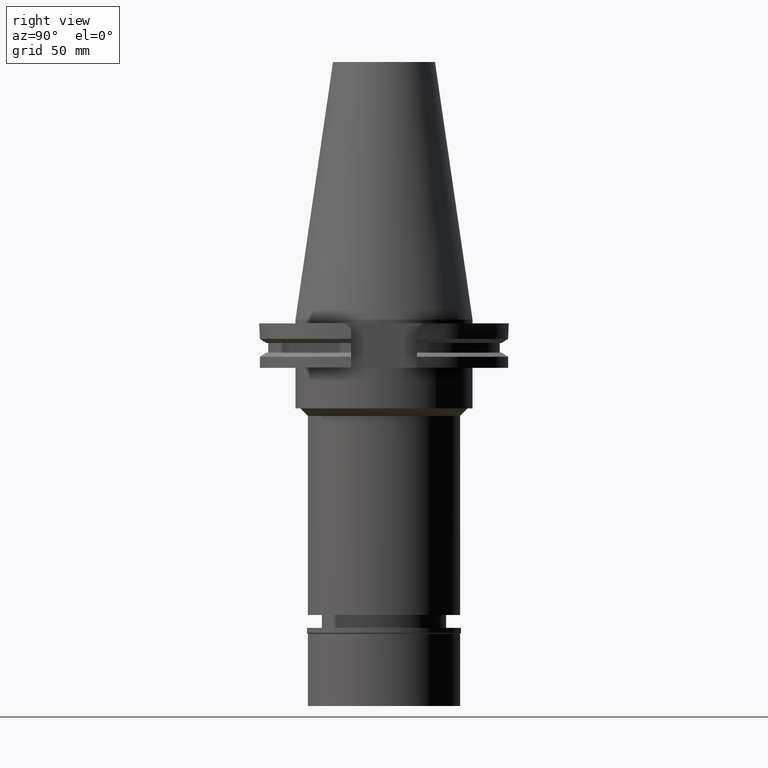
[diagram: clean part render]
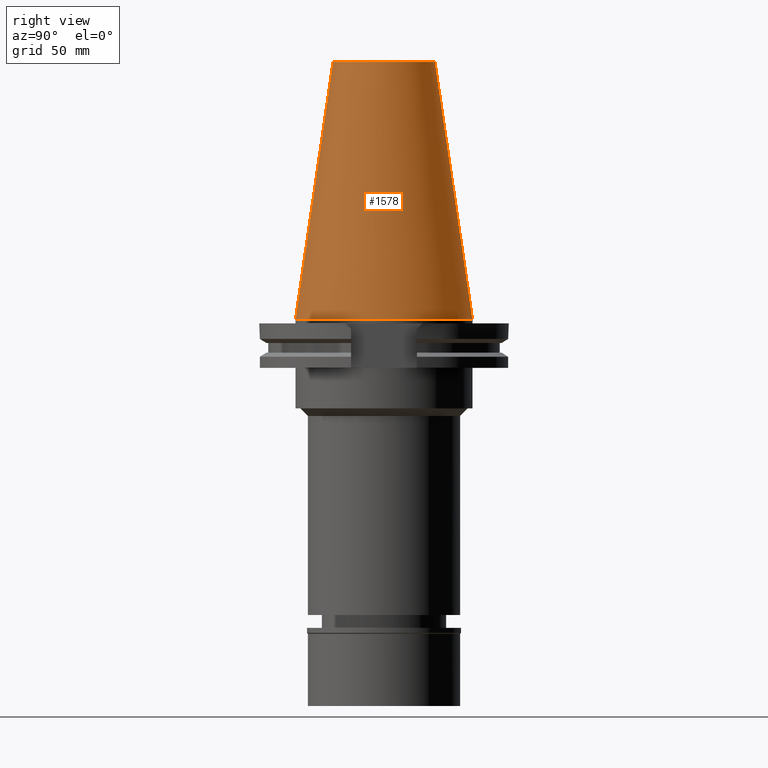
[diagram: same view with one face highlighted and labeled with its STEP entity id]
A machine part, right view. The second image highlights one B-rep face of the part: STEP entity #1578.
In plain terms, the highlighted conical surface has half-angle 8.297 deg.
Its self-contained STEP definition (entity closure, byte-faithful):
#33 = EDGE_CURVE ( 'NONE', #2354, #126, #1964, .T. ) ;
#64 = ORIENTED_EDGE ( 'NONE', *, *, #394, .T. ) ;
#96 = DIRECTION ( 'NONE',  ( 0.0000000000000000000, 0.0000000000000000000, -1.000000000000000000 ) ) ;
#126 = VERTEX_POINT ( 'NONE', #2082 ) ;
#247 = LINE ( 'NONE', #2671, #2141 ) ;
#258 = AXIS2_PLACEMENT_3D ( 'NONE', #1916, #655, #2137 ) ;
#315 = FACE_OUTER_BOUND ( 'NONE', #2361, .T. ) ;
#394 = EDGE_CURVE ( 'NONE', #2293, #2354, #2621, .T. ) ;
#525 = DIRECTION ( 'NONE',  ( 0.0000000000000000000, 0.0000000000000000000, -1.000000000000000000 ) ) ;
#655 = DIRECTION ( 'NONE',  ( 0.0000000000000000000, 0.0000000000000000000, -1.000000000000000000 ) ) ;
#727 = EDGE_CURVE ( 'NONE', #1858, #126, #1563, .T. ) ;
#761 = VECTOR ( 'NONE', #780, 1000.000000000000114 ) ;
#780 = DIRECTION ( 'NONE',  ( 0.0000000000000000000, -0.1443069799456937474, -0.9895329683941577192 ) ) ;
#973 = DIRECTION ( 'NONE',  ( 0.0000000000000000000, 0.1443069799456937474, -0.9895329683941577192 ) ) ;
#1518 = CONICAL_SURFACE ( 'NONE', #2730, 27.51666211194000056, 0.1448125860318199565 ) ;
#1526 = DIRECTION ( 'NONE',  ( 0.0000000000000000000, -1.000000000000000000, 0.0000000000000000000 ) ) ;
#1563 = CIRCLE ( 'NONE', #2270, 34.92499999999999716 ) ;
#1578 = ADVANCED_FACE ( 'NONE', ( #315 ), #1518, .T. ) ;
#1584 = ORIENTED_EDGE ( 'NONE', *, *, #33, .T. ) ;
#1611 = ORIENTED_EDGE ( 'NONE', *, *, #727, .F. ) ;
#1612 = CARTESIAN_POINT ( 'NONE',  ( 0.0000000000000000000, -20.10832422388000040, 101.5999999999999943 ) ) ;
#1617 = DIRECTION ( 'NONE',  ( 0.0000000000000000000, 1.000000000000000000, 0.0000000000000000000 ) ) ;
#1858 = VERTEX_POINT ( 'NONE', #3168 ) ;
#1916 = CARTESIAN_POINT ( 'NONE',  ( 0.0000000000000000000, 0.0000000000000000000, 101.5999999999999943 ) ) ;
#1964 = LINE ( 'NONE', #2955, #761 ) ;
#2082 = CARTESIAN_POINT ( 'NONE',  ( 0.0000000000000000000, -34.92499999999999716, 4.334310688136999884E-13 ) ) ;
#2137 = DIRECTION ( 'NONE',  ( 0.0000000000000000000, 1.000000000000000000, 0.0000000000000000000 ) ) ;
#2141 = VECTOR ( 'NONE', #973, 1000.000000000000114 ) ;
#2219 = EDGE_CURVE ( 'NONE', #2293, #1858, #247, .T. ) ;
#2270 = AXIS2_PLACEMENT_3D ( 'NONE', #2751, #96, #1617 ) ;
#2293 = VERTEX_POINT ( 'NONE', #2977 ) ;
#2354 = VERTEX_POINT ( 'NONE', #1612 ) ;
#2361 = EDGE_LOOP ( 'NONE', ( #64, #1584, #1611, #2866 ) ) ;
#2621 = CIRCLE ( 'NONE', #258, 20.10832422388000040 ) ;
#2671 = CARTESIAN_POINT ( 'NONE',  ( 0.0000000000000000000, 20.10832422387000307, 101.5999999999999943 ) ) ;
#2728 = CARTESIAN_POINT ( 'NONE',  ( 0.0000000000000000000, 0.0000000000000000000, 50.79999999999999716 ) ) ;
#2730 = AXIS2_PLACEMENT_3D ( 'NONE', #2728, #525, #1526 ) ;
#2751 = CARTESIAN_POINT ( 'NONE',  ( 0.0000000000000000000, 0.0000000000000000000, 8.242295734816999588E-13 ) ) ;
#2866 = ORIENTED_EDGE ( 'NONE', *, *, #2219, .F. ) ;
#2955 = CARTESIAN_POINT ( 'NONE',  ( 0.0000000000000000000, -20.10832422387000307, 101.5999999999999943 ) ) ;
#2977 = CARTESIAN_POINT ( 'NONE',  ( 0.0000000000000000000, 20.10832422388000040, 101.5999999999999943 ) ) ;
#3168 = CARTESIAN_POINT ( 'NONE',  ( 0.0000000000000000000, 34.92499999999999716, 4.334310688136999884E-13 ) ) ;